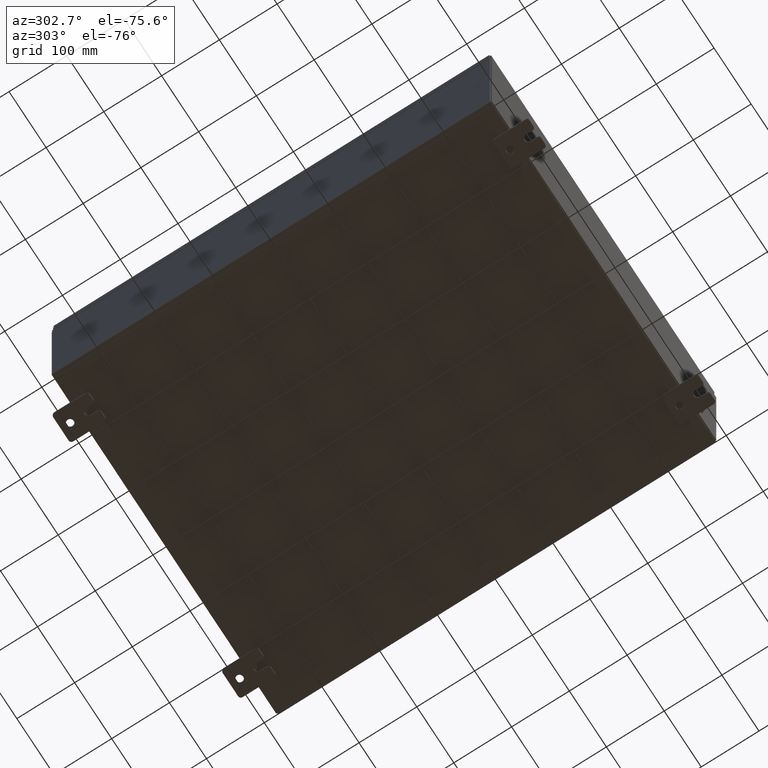
[diagram: clean part render]
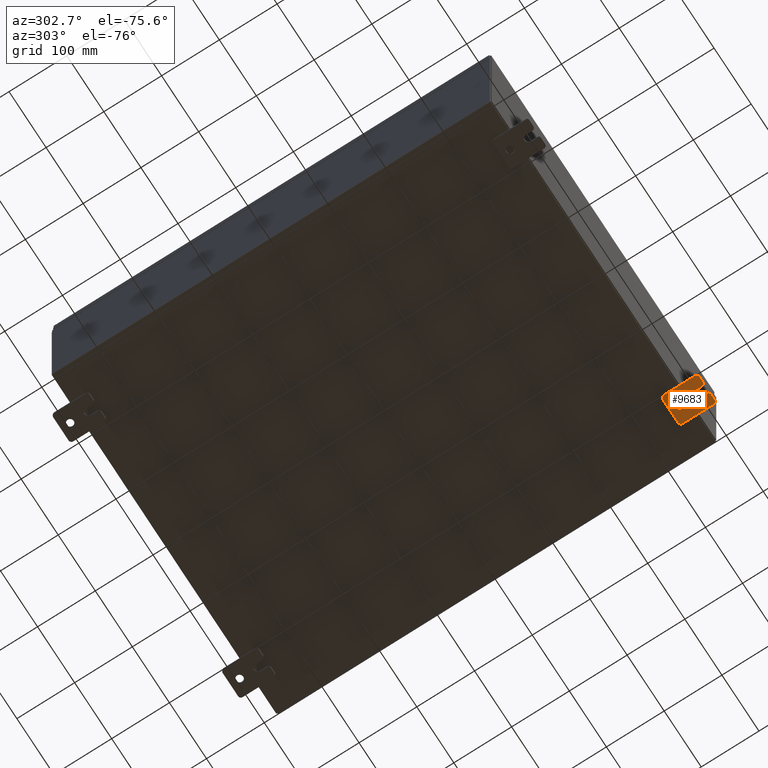
[diagram: same view with one face highlighted and labeled with its STEP entity id]
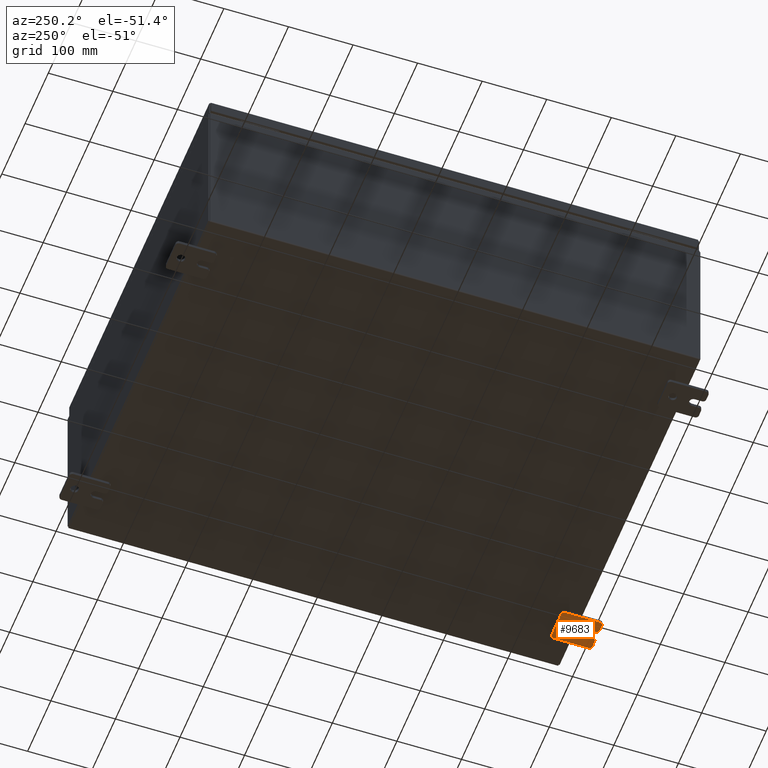
[diagram: same view with one face highlighted and labeled with its STEP entity id]
A machine part, auxiliary view. The second image highlights one B-rep face of the part: STEP entity #9683.
A second angle (auxiliary view) of the same face is appended — the face is thin or edge-on in the first view.
In plain terms, the highlighted planar face has unit normal (0, 0, 1).
Its self-contained STEP definition (entity closure, byte-faithful):
#19 = VERTEX_POINT ( 'NONE', #37309 ) ;
#30 = DIRECTION ( 'NONE',  ( 0.0000000000000000000, 0.0000000000000000000, -1.000000000000000000 ) ) ;
#42 = EDGE_CURVE ( 'NONE', #10728, #47768, #18123, .T. ) ;
#224 = CARTESIAN_POINT ( 'NONE',  ( -0.1880000000000010000, 0.6249999999999992200, -7.703811342100550500E-020 ) ) ;
#1352 = VERTEX_POINT ( 'NONE', #19890 ) ;
#1623 = LINE ( 'NONE', #8293, #52801 ) ;
#3331 = VECTOR ( 'NONE', #4717, 39.37007874015748100 ) ;
#3342 = VERTEX_POINT ( 'NONE', #51942 ) ;
#4261 = EDGE_CURVE ( 'NONE', #61316, #16191, #13219, .T. ) ;
#4414 = VERTEX_POINT ( 'NONE', #15739 ) ;
#4717 = DIRECTION ( 'NONE',  ( 0.0000000000000000000, -1.639108796198553600E-015, -1.000000000000000000 ) ) ;
#4922 = VERTEX_POINT ( 'NONE', #36168 ) ;
#5162 = DIRECTION ( 'NONE',  ( 0.0000000000000000000, 0.0000000000000000000, -1.000000000000000000 ) ) ;
#6557 = VECTOR ( 'NONE', #41019, 39.37007874015748100 ) ;
#6833 = EDGE_CURVE ( 'NONE', #3342, #19, #20037, .T. ) ;
#7189 = CARTESIAN_POINT ( 'NONE',  ( -0.1879999999999997800, -1.250000000000005300, -0.8100000000000047200 ) ) ;
#8096 = CARTESIAN_POINT ( 'NONE',  ( -0.1879999999999997800, -1.060000000000001600, 0.8099999999999978300 ) ) ;
#8293 = CARTESIAN_POINT ( 'NONE',  ( -0.1879999999999997800, -1.250000000000005600, -1.000000000000006200 ) ) ;
#8504 = EDGE_CURVE ( 'NONE', #4414, #47769, #42826, .T. ) ;
#8537 = EDGE_CURVE ( 'NONE', #21674, #16191, #16459, .T. ) ;
#9165 = VERTEX_POINT ( 'NONE', #43396 ) ;
#9229 = DIRECTION ( 'NONE',  ( -1.000000000000000000, -0.0000000000000000000, 0.0000000000000000000 ) ) ;
#9683 = ADVANCED_FACE ( 'NONE', ( #38099, #61456 ), #57609, .F. ) ;
#9727 = ORIENTED_EDGE ( 'NONE', *, *, #25691, .F. ) ;
#10122 = AXIS2_PLACEMENT_3D ( 'NONE', #52600, #62372, #62577 ) ;
#10621 = AXIS2_PLACEMENT_3D ( 'NONE', #54920, #25144, #59903 ) ;
#10728 = VERTEX_POINT ( 'NONE', #26346 ) ;
#10806 = AXIS2_PLACEMENT_3D ( 'NONE', #42010, #9229, #20019 ) ;
#11412 = ORIENTED_EDGE ( 'NONE', *, *, #58101, .T. ) ;
#12093 = LINE ( 'NONE', #59836, #63340 ) ;
#13054 = DIRECTION ( 'NONE',  ( 0.0000000000000000000, 7.189073667537492800E-016, -1.000000000000000000 ) ) ;
#13219 = CIRCLE ( 'NONE', #10806, 0.1900000000000011400 ) ;
#14043 = VECTOR ( 'NONE', #32793, 39.37007874015748100 ) ;
#14356 = CIRCLE ( 'NONE', #39811, 0.1900000000000011100 ) ;
#14397 = DIRECTION ( 'NONE',  ( -1.000000000000000000, -0.0000000000000000000, 0.0000000000000000000 ) ) ;
#14946 = CARTESIAN_POINT ( 'NONE',  ( -0.1879999999999997800, 1.249999999999994200, -1.000000000000010400 ) ) ;
#15213 = VECTOR ( 'NONE', #49699, 39.37007874015748100 ) ;
#15739 = CARTESIAN_POINT ( 'NONE',  ( -0.1879999999999997800, -1.060000000000004500, -1.000000000000006400 ) ) ;
#16191 = VERTEX_POINT ( 'NONE', #61943 ) ;
#16459 = LINE ( 'NONE', #39353, #3331 ) ;
#17629 = ORIENTED_EDGE ( 'NONE', *, *, #42, .F. ) ;
#18123 = LINE ( 'NONE', #40581, #6557 ) ;
#19395 = DIRECTION ( 'NONE',  ( -1.000000000000000000, -0.0000000000000000000, 0.0000000000000000000 ) ) ;
#19890 = CARTESIAN_POINT ( 'NONE',  ( -0.1880000000000010000, 0.6249999999999992200, -0.2499999999999999200 ) ) ;
#20019 = DIRECTION ( 'NONE',  ( 0.0000000000000000000, 0.0000000000000000000, -1.000000000000000000 ) ) ;
#20037 = CIRCLE ( 'NONE', #26660, 0.2499999999999999200 ) ;
#20057 = DIRECTION ( 'NONE',  ( 0.0000000000000000000, -1.639108796198553600E-015, -1.000000000000000000 ) ) ;
#21083 = CARTESIAN_POINT ( 'NONE',  ( -0.1879999999999997800, 1.059999999999993400, -1.000000000000010000 ) ) ;
#21245 = EDGE_LOOP ( 'NONE', ( #53073, #43712 ) ) ;
#21293 = AXIS2_PLACEMENT_3D ( 'NONE', #224, #34824, #5162 ) ;
#21674 = VERTEX_POINT ( 'NONE', #36794 ) ;
#22105 = AXIS2_PLACEMENT_3D ( 'NONE', #44086, #14397, #49122 ) ;
#22175 = EDGE_CURVE ( 'NONE', #10728, #25404, #36039, .T. ) ;
#22981 = ORIENTED_EDGE ( 'NONE', *, *, #64003, .F. ) ;
#23424 = DIRECTION ( 'NONE',  ( 1.000000000000000000, -0.0000000000000000000, -5.163192708025532000E-017 ) ) ;
#23782 = EDGE_LOOP ( 'NONE', ( #48432, #29783, #17629, #57973, #36566, #24532, #22981, #50007, #61008, #11412, #9727, #44540, #25973, #46132 ) ) ;
#24532 = ORIENTED_EDGE ( 'NONE', *, *, #57213, .T. ) ;
#25144 = DIRECTION ( 'NONE',  ( -1.000000000000000000, -0.0000000000000000000, 0.0000000000000000000 ) ) ;
#25404 = VERTEX_POINT ( 'NONE', #26552 ) ;
#25691 = EDGE_CURVE ( 'NONE', #19, #4922, #27266, .T. ) ;
#25973 = ORIENTED_EDGE ( 'NONE', *, *, #59287, .F. ) ;
#26346 = CARTESIAN_POINT ( 'NONE',  ( -0.1879999999999997800, 1.059999999999996500, 0.9999999999999953400 ) ) ;
#26552 = CARTESIAN_POINT ( 'NONE',  ( -0.1879999999999997800, 1.249999999999997300, 0.8099999999999935000 ) ) ;
#26660 = AXIS2_PLACEMENT_3D ( 'NONE', #56554, #56607, #56685 ) ;
#26669 = CARTESIAN_POINT ( 'NONE',  ( -0.1879999999999997800, -1.060000000000001200, 0.9999999999999988900 ) ) ;
#27047 = DIRECTION ( 'NONE',  ( 6.556435184794182400E-016, 1.000000000000000000, 0.0000000000000000000 ) ) ;
#27266 = LINE ( 'NONE', #57399, #14043 ) ;
#29294 = VERTEX_POINT ( 'NONE', #39714 ) ;
#29625 = DIRECTION ( 'NONE',  ( -1.000000000000000000, -0.0000000000000000000, 0.0000000000000000000 ) ) ;
#29783 = ORIENTED_EDGE ( 'NONE', *, *, #32796, .T. ) ;
#29882 = CIRCLE ( 'NONE', #10621, 0.1900000000000011100 ) ;
#29924 = LINE ( 'NONE', #14946, #15213 ) ;
#30749 = VERTEX_POINT ( 'NONE', #55989 ) ;
#31010 = CIRCLE ( 'NONE', #21293, 0.2499999999999999200 ) ;
#32793 = DIRECTION ( 'NONE',  ( -6.556435184794182400E-016, -1.000000000000000000, -1.639108796198545600E-016 ) ) ;
#32796 = EDGE_CURVE ( 'NONE', #21674, #47768, #14356, .T. ) ;
#33877 = EDGE_CURVE ( 'NONE', #29294, #47769, #12093, .T. ) ;
#34824 = DIRECTION ( 'NONE',  ( 1.000000000000000000, -0.0000000000000000000, -5.163192708025532000E-017 ) ) ;
#36039 = CIRCLE ( 'NONE', #22105, 0.1900000000000011100 ) ;
#36087 = EDGE_CURVE ( 'NONE', #30749, #1352, #31010, .T. ) ;
#36168 = CARTESIAN_POINT ( 'NONE',  ( -0.1880000000000004700, -1.060000000000003400, -0.2499999999999994400 ) ) ;
#36566 = ORIENTED_EDGE ( 'NONE', *, *, #41562, .F. ) ;
#36794 = CARTESIAN_POINT ( 'NONE',  ( -0.1879999999999997800, -1.250000000000002400, 0.8099999999999980500 ) ) ;
#37309 = CARTESIAN_POINT ( 'NONE',  ( -0.1880000000000001900, -0.6249999999999992200, -0.2499999999999998600 ) ) ;
#38099 = FACE_BOUND ( 'NONE', #21245, .T. ) ;
#39353 = CARTESIAN_POINT ( 'NONE',  ( -0.1879999999999997800, -1.250000000000002200, 0.9999999999999992200 ) ) ;
#39714 = CARTESIAN_POINT ( 'NONE',  ( -0.1879999999999997800, -1.250000000000004700, -0.4400000000000002200 ) ) ;
#39811 = AXIS2_PLACEMENT_3D ( 'NONE', #8096, #42739, #13054 ) ;
#40581 = CARTESIAN_POINT ( 'NONE',  ( -0.1879999999999997800, 1.249999999999997600, 0.9999999999999951200 ) ) ;
#41019 = DIRECTION ( 'NONE',  ( 0.0000000000000000000, -1.000000000000000000, 1.639108796198558100E-015 ) ) ;
#41562 = EDGE_CURVE ( 'NONE', #9165, #25404, #29924, .T. ) ;
#41632 = CIRCLE ( 'NONE', #44215, 0.1900000000000011100 ) ;
#42010 = CARTESIAN_POINT ( 'NONE',  ( -0.1879999999999997800, -1.060000000000002100, 0.4400000000000016700 ) ) ;
#42739 = DIRECTION ( 'NONE',  ( -1.000000000000000000, -0.0000000000000000000, 0.0000000000000000000 ) ) ;
#42826 = CIRCLE ( 'NONE', #51694, 0.1900000000000011100 ) ;
#43396 = CARTESIAN_POINT ( 'NONE',  ( -0.1879999999999997800, 1.249999999999994700, -0.8100000000000092700 ) ) ;
#43712 = ORIENTED_EDGE ( 'NONE', *, *, #36087, .T. ) ;
#44035 = VERTEX_POINT ( 'NONE', #21083 ) ;
#44086 = CARTESIAN_POINT ( 'NONE',  ( -0.1879999999999997800, 1.059999999999996300, 0.8099999999999938400 ) ) ;
#44215 = AXIS2_PLACEMENT_3D ( 'NONE', #59427, #29625, #30 ) ;
#44399 = EDGE_CURVE ( 'NONE', #1352, #30749, #62462, .T. ) ;
#44540 = ORIENTED_EDGE ( 'NONE', *, *, #6833, .F. ) ;
#44626 = CARTESIAN_POINT ( 'NONE',  ( -0.1880000000000004700, -1.060000000000002100, 0.2500000000000005000 ) ) ;
#45722 = AXIS2_PLACEMENT_3D ( 'NONE', #53183, #23424, #58204 ) ;
#46132 = ORIENTED_EDGE ( 'NONE', *, *, #4261, .T. ) ;
#46936 = VECTOR ( 'NONE', #27047, 39.37007874015748100 ) ;
#47768 = VERTEX_POINT ( 'NONE', #26669 ) ;
#47769 = VERTEX_POINT ( 'NONE', #7189 ) ;
#48432 = ORIENTED_EDGE ( 'NONE', *, *, #8537, .F. ) ;
#49122 = DIRECTION ( 'NONE',  ( 0.0000000000000000000, 0.0000000000000000000, -1.000000000000000000 ) ) ;
#49152 = CARTESIAN_POINT ( 'NONE',  ( -0.1879999999999997800, -1.060000000000004100, -0.8100000000000050500 ) ) ;
#49699 = DIRECTION ( 'NONE',  ( 0.0000000000000000000, 1.639108796198553600E-015, 1.000000000000000000 ) ) ;
#50007 = ORIENTED_EDGE ( 'NONE', *, *, #8504, .T. ) ;
#51694 = AXIS2_PLACEMENT_3D ( 'NONE', #49152, #19395, #54197 ) ;
#51942 = CARTESIAN_POINT ( 'NONE',  ( -0.1880000000000001900, -0.6249999999999992200, 0.2500000000000005000 ) ) ;
#52600 = CARTESIAN_POINT ( 'NONE',  ( -0.1879999999999997800, 0.0000000000000000000, 0.0000000000000000000 ) ) ;
#52801 = VECTOR ( 'NONE', #62951, 39.37007874015748100 ) ;
#53073 = ORIENTED_EDGE ( 'NONE', *, *, #44399, .T. ) ;
#53183 = CARTESIAN_POINT ( 'NONE',  ( -0.1880000000000010000, 0.6249999999999992200, -7.703811342100550500E-020 ) ) ;
#54197 = DIRECTION ( 'NONE',  ( 0.0000000000000000000, 0.0000000000000000000, -1.000000000000000000 ) ) ;
#54920 = CARTESIAN_POINT ( 'NONE',  ( -0.1879999999999997800, -1.060000000000003400, -0.4400000000000005000 ) ) ;
#55989 = CARTESIAN_POINT ( 'NONE',  ( -0.1880000000000010000, 0.6249999999999992200, 0.2499999999999999200 ) ) ;
#56554 = CARTESIAN_POINT ( 'NONE',  ( -0.1880000000000001900, -0.6249999999999992200, 6.829619984160658000E-017 ) ) ;
#56607 = DIRECTION ( 'NONE',  ( -1.000000000000000000, 6.523827964459549700E-016, 5.163192708025532000E-017 ) ) ;
#56685 = DIRECTION ( 'NONE',  ( -6.829619984160660000E-016, -1.000000000000000000, 0.0000000000000000000 ) ) ;
#56822 = CARTESIAN_POINT ( 'NONE',  ( -0.1880000000000005800, -1.250000000000003800, 0.2500000000000005000 ) ) ;
#57213 = EDGE_CURVE ( 'NONE', #9165, #44035, #41632, .T. ) ;
#57399 = CARTESIAN_POINT ( 'NONE',  ( -0.1880000000000001900, -0.6249999999999992200, -0.2499999999999993900 ) ) ;
#57609 = PLANE ( 'NONE',  #10122 ) ;
#57973 = ORIENTED_EDGE ( 'NONE', *, *, #22175, .T. ) ;
#58101 = EDGE_CURVE ( 'NONE', #29294, #4922, #29882, .T. ) ;
#58204 = DIRECTION ( 'NONE',  ( 0.0000000000000000000, 0.0000000000000000000, -1.000000000000000000 ) ) ;
#59287 = EDGE_CURVE ( 'NONE', #61316, #3342, #60188, .T. ) ;
#59427 = CARTESIAN_POINT ( 'NONE',  ( -0.1879999999999997800, 1.059999999999993600, -0.8100000000000089400 ) ) ;
#59836 = CARTESIAN_POINT ( 'NONE',  ( -0.1879999999999997800, -1.250000000000002200, 0.9999999999999992200 ) ) ;
#59903 = DIRECTION ( 'NONE',  ( 0.0000000000000000000, 0.0000000000000000000, -1.000000000000000000 ) ) ;
#60188 = LINE ( 'NONE', #56822, #46936 ) ;
#61008 = ORIENTED_EDGE ( 'NONE', *, *, #33877, .F. ) ;
#61316 = VERTEX_POINT ( 'NONE', #44626 ) ;
#61456 = FACE_OUTER_BOUND ( 'NONE', #23782, .T. ) ;
#61943 = CARTESIAN_POINT ( 'NONE',  ( -0.1879999999999997800, -1.250000000000003100, 0.4400000000000020000 ) ) ;
#62372 = DIRECTION ( 'NONE',  ( 1.000000000000000000, 0.0000000000000000000, -0.0000000000000000000 ) ) ;
#62462 = CIRCLE ( 'NONE', #45722, 0.2499999999999999200 ) ;
#62577 = DIRECTION ( 'NONE',  ( -0.0000000000000000000, 0.0000000000000000000, -1.000000000000000000 ) ) ;
#62951 = DIRECTION ( 'NONE',  ( 0.0000000000000000000, 1.000000000000000000, -1.639108796198558100E-015 ) ) ;
#63340 = VECTOR ( 'NONE', #20057, 39.37007874015748100 ) ;
#64003 = EDGE_CURVE ( 'NONE', #4414, #44035, #1623, .T. ) ;